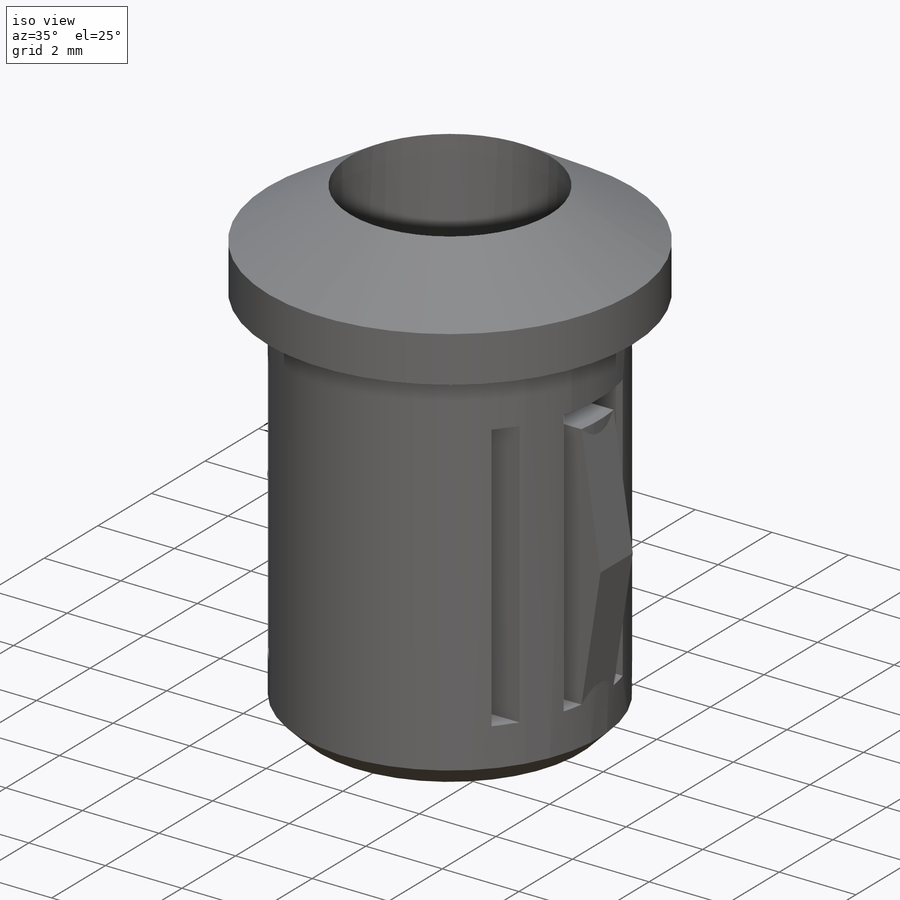
[diagram: iso view]
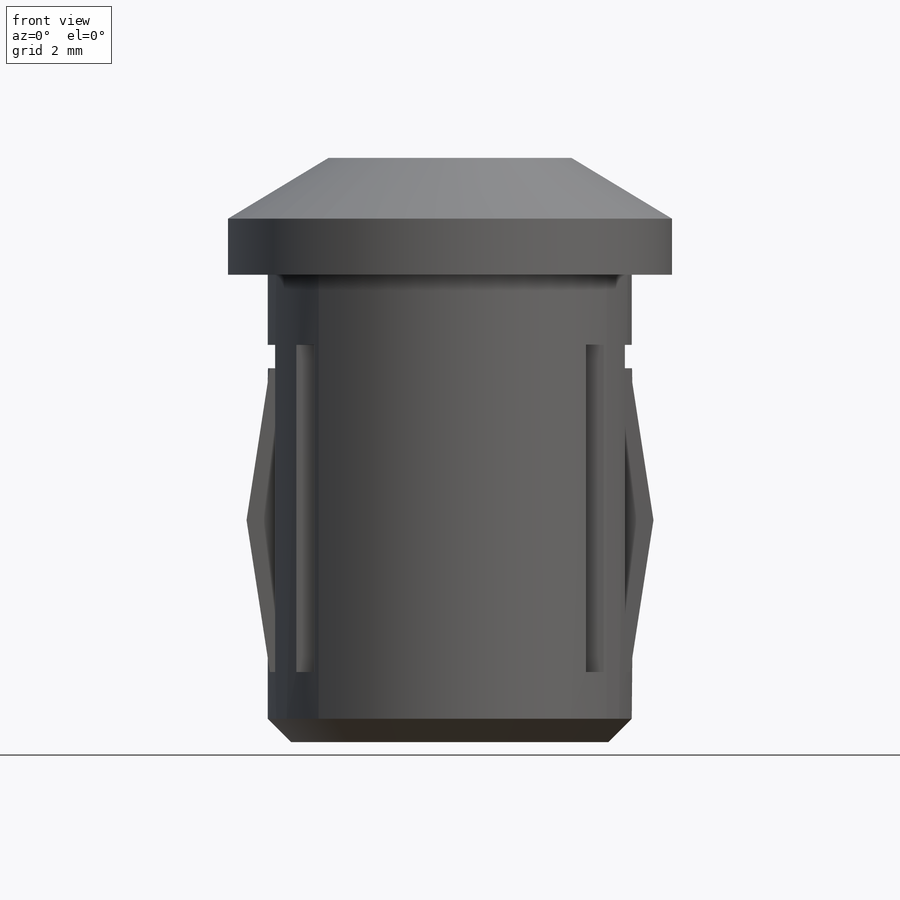
[diagram: front view]
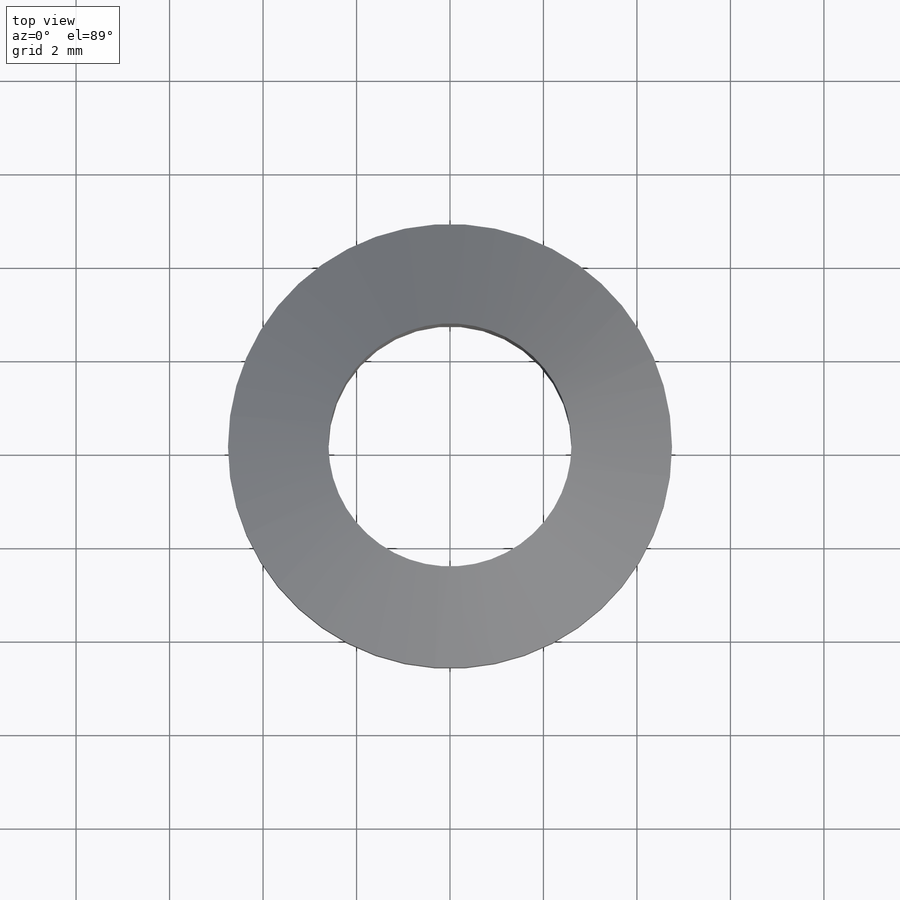
[diagram: top view]
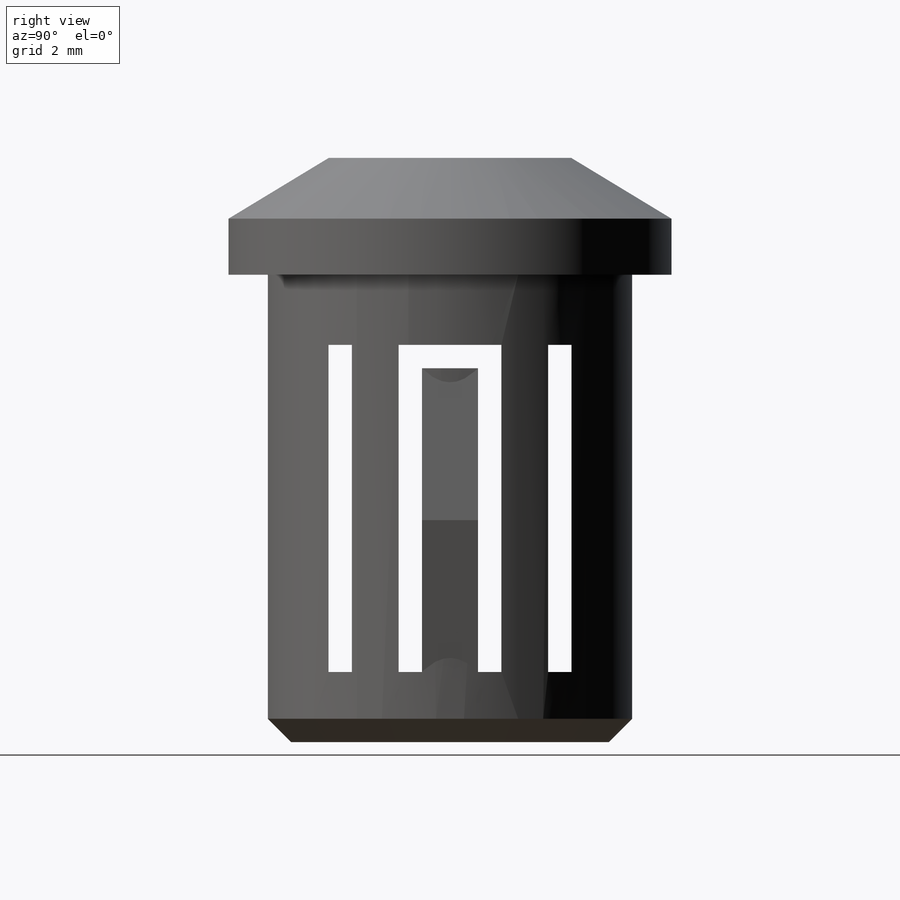
[diagram: right view]
SOLIDWORKS PART (.sldprt)
format: sldprt  version: not decoded by parser v0  size: 203,264 bytes
history: native  units: mm
features: sketch x3, material x1, revolve x1, cut_extrude x1, extrude x1, mirror x1, chamfer x1 (+12 scaffold rows collapsed)
feature tree (21):
  scaffold x12  (default folders/planes/origin — collapsed)
  material  "Material <not specified>"
  sketch  "Sketch1"  dims[c1.D1=90.0deg c2.D1=9.5mm c2.D2=5.2mm c2.D3=1.2mm c2.D4=10.0mm c2.D5=0.8mm c2.D6=7.8mm c2.D7=2.5mm c2.D8=4.0mm]
  revolve  "Revolve1"  Angle=360deg
  sketch  "Sketch2"  dims[D1=7.0mm D2=0.5mm D3=1.2mm D4=0.5mm D5=1.0mm D6=1.0mm]
  cut_extrude  "Cut-Extrude1"  [1 undecoded]
  sketch  "Sketch3"  dims[D1=0.5mm]
  extrude  "Boss-Extrude1"  [1 undecoded]
  mirror  "Mirror1"
  chamfer  "Chamfer1"  Distance=0.5mm Angle=45deg
decode coverage: 5 of 8 modeling features carry decoded parameters
note: 2 parameter values undecoded
note: suppression state not decoded; provenance and decode notes live in map.json
